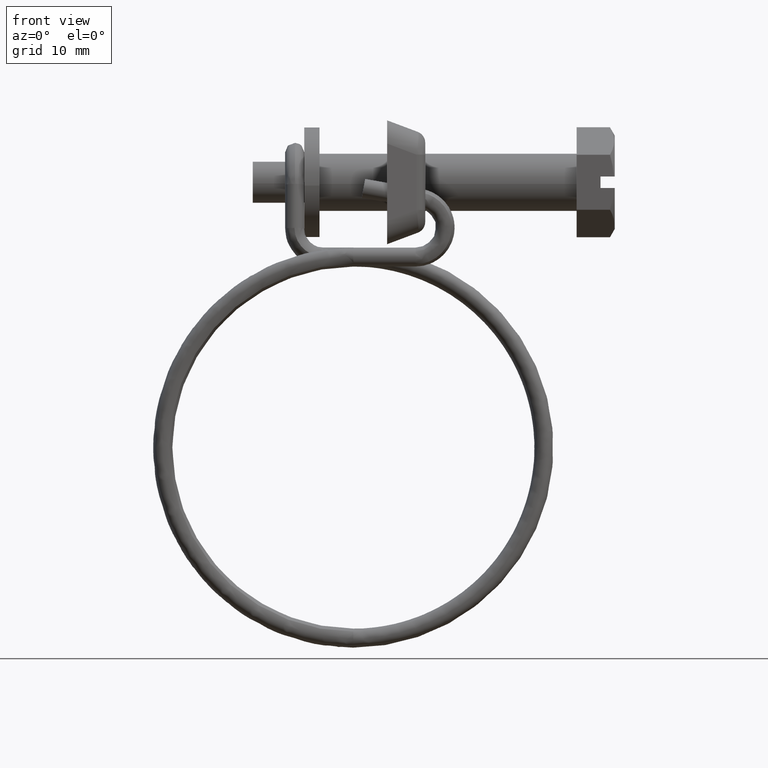
[diagram: clean part render]
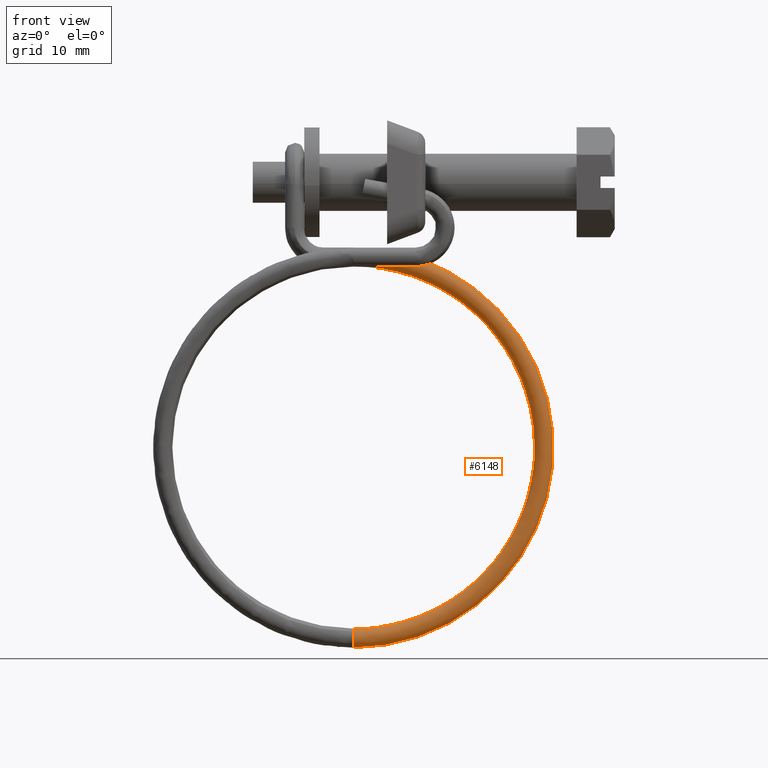
[diagram: same view with one face highlighted and labeled with its STEP entity id]
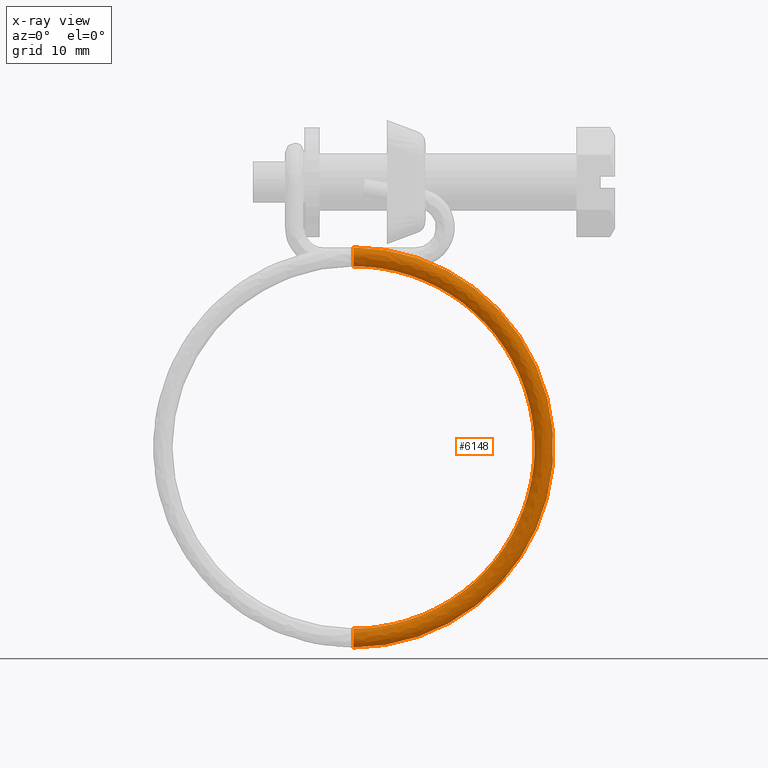
[diagram: x-ray of the same camera — body ghosted, the highlighted face saturated]
A machine part, front view. The second image highlights one B-rep face of the part: STEP entity #6148.
The next image is the same camera in x-ray: the body ghosted, the highlighted face saturated — about 0% of this face is hidden behind the body in this view.
In plain terms, the highlighted face is a freeform B-spline surface patch.
Its self-contained STEP definition (entity closure, byte-faithful):
#4753=CARTESIAN_POINT('',(-23.449996863796830,-5.000908593711698,-8.563250726206654));
#4754=VERTEX_POINT('',#4753);
#4755=CARTESIAN_POINT('',(-23.449996633139222,-5.013226867592238,-7.149116746092552));
#4756=VERTEX_POINT('',#4755);
#4757=CARTESIAN_POINT('',(-23.449996863796830,-5.000908593711698,-8.563250726206654));
#4758=CARTESIAN_POINT('',(-23.449996863217539,-5.004527122057084,-8.559699194597682));
#4759=CARTESIAN_POINT('',(-23.449996862633480,-5.008118266401384,-8.556118435495623));
#4760=CARTESIAN_POINT('',(-23.449996862044681,-5.011681511626909,-8.552508664252308));
#4761=CARTESIAN_POINT('',(-23.449996831902428,-5.194094453122895,-8.367713919870541));
#4762=CARTESIAN_POINT('',(-23.449996790012701,-5.300007484847146,-8.110891414158088));
#4763=CARTESIAN_POINT('',(-23.449996747459640,-5.300015769071364,-7.850004031328743));
#4764=CARTESIAN_POINT('',(-23.449996705175309,-5.300024000979279,-7.590764197282907));
#4765=CARTESIAN_POINT('',(-23.449996663403891,-5.194772174167261,-7.334667816894669));
#4766=CARTESIAN_POINT('',(-23.449996633139222,-5.013226867592238,-7.149116746092552));
#4767=B_SPLINE_CURVE_WITH_KNOTS('',3,(#4757,#4758,#4759,#4760,#4761,#4762,#4763,#4764,#4765,#4766),.UNSPECIFIED.,.F.,.U.,(4,3,3,4),(0.777967315659430,0.793183761033104,1.572158090344366,2.346213062518750),.UNSPECIFIED.);
#4768=EDGE_CURVE('',#4754,#4756,#4767,.T.);
#4839=CARTESIAN_POINT('',(-23.449996584354128,-4.293718917740948,-6.850030608523497));
#4840=VERTEX_POINT('',#4839);
#4841=CARTESIAN_POINT('',(-23.449996633139222,-5.013226867592238,-7.149116746092552));
#4842=CARTESIAN_POINT('',(-23.449996630752000,-4.998905181228775,-7.134480816296122));
#4843=CARTESIAN_POINT('',(-23.449996628436381,-4.984108756247284,-7.120283855972380));
#4844=CARTESIAN_POINT('',(-23.449996626197759,-4.968851812298862,-7.106558947872640));
#4845=CARTESIAN_POINT('',(-23.449996599252032,-4.785207916782578,-6.941355772350729));
#4846=CARTESIAN_POINT('',(-23.449996584100209,-4.540166403185014,-6.848474872630498));
#4847=CARTESIAN_POINT('',(-23.449996584354128,-4.293718917740948,-6.850030608523497));
#4848=B_SPLINE_CURVE_WITH_KNOTS('',3,(#4841,#4842,#4843,#4844,#4845,#4846,#4847),.UNSPECIFIED.,.F.,.U.,(4,3,4),(2.346213062518750,2.407272773988328,3.142232757539485),.UNSPECIFIED.);
#4849=EDGE_CURVE('',#4756,#4840,#4848,.T.);
#4851=CARTESIAN_POINT('',(-23.449996758515940,-3.302436340479343,-7.919734456426307));
#4852=VERTEX_POINT('',#4851);
#4868=CARTESIAN_POINT('',(-23.449996910568728,-4.300002000000000,-8.850001000000578));
#4869=VERTEX_POINT('',#4868);
#4870=CARTESIAN_POINT('',(-23.449996758515940,-3.302436340479343,-7.919734456426308));
#4871=CARTESIAN_POINT('',(-23.449996910568611,-3.367465536661122,-8.850001000000580));
#4872=CARTESIAN_POINT('',(-23.449996910568728,-4.300002000000000,-8.850001000000578));
#4880=(BOUNDED_CURVE()B_SPLINE_CURVE(2,(#4870,#4871,#4872),.UNSPECIFIED.,.F.,.U.)B_SPLINE_CURVE_WITH_KNOTS((3,3),(0.762166384098129,1.0),.UNSPECIFIED.)CURVE()GEOMETRIC_REPRESENTATION_ITEM()RATIONAL_B_SPLINE_CURVE((0.972879726991674,0.721360586785834,1.0))REPRESENTATION_ITEM(''));
#4881=EDGE_CURVE('',#4852,#4869,#4880,.T.);
#4883=CARTESIAN_POINT('',(-23.449996910568728,-4.300002000000000,-8.850001000000578));
#4884=CARTESIAN_POINT('',(-23.449996910569538,-4.559324968388849,-8.850001539832457));
#4885=CARTESIAN_POINT('',(-23.449996893413800,-4.815907585326803,-8.744824974268825));
#4886=CARTESIAN_POINT('',(-23.449996863796830,-5.000908593711698,-8.563250726206654));
#4887=B_SPLINE_CURVE_WITH_KNOTS('',3,(#4883,#4884,#4885,#4886),.UNSPECIFIED.,.F.,.U.,(4,4),(0.0,0.777967315659431),.UNSPECIFIED.);
#4888=EDGE_CURVE('',#4869,#4754,#4887,.T.);
#6033=CARTESIAN_POINT('',(-26.257916351738508,-3.302436326159566,-8.118525170123903));
#6034=CARTESIAN_POINT('',(-3.229009225186917,-3.302436326159564,-4.841363064215777));
#6035=CARTESIAN_POINT('',(-3.521306861655130,-3.302436326159568,-28.100445526846464));
#6036=CARTESIAN_POINT('',(-3.806684889802285,-3.302436326159573,-50.808912040291702));
#6037=CARTESIAN_POINT('',(-26.285869280133902,-3.302436326159572,-47.577478742715385));
#6038=CARTESIAN_POINT('',(-26.125193068076609,-3.368289162160298,-9.051183389096478));
#6039=CARTESIAN_POINT('',(-4.184805608817919,-3.368289162160299,-5.928924656830215));
#6040=CARTESIAN_POINT('',(-4.463287056604212,-3.368289162160303,-28.088607631476940));
#6041=CARTESIAN_POINT('',(-4.735175968896044,-3.368289162160307,-49.723700915436737));
#6042=CARTESIAN_POINT('',(-26.151824730458397,-3.368289162160306,-46.645009503466490));
#6043=CARTESIAN_POINT('',(-26.126864944043966,-4.312568039883350,-9.039434969233525));
#6044=CARTESIAN_POINT('',(-4.172765724335091,-4.312568039883349,-5.915224964963530));
#6045=CARTESIAN_POINT('',(-4.451421210565737,-4.312568039883352,-28.088756749945279));
#6046=CARTESIAN_POINT('',(-4.723480041262215,-4.312568039883355,-49.737370999155914));
#6047=CARTESIAN_POINT('',(-26.153513250023117,-4.312568039883356,-46.656755542807723));
#6048=CARTESIAN_POINT('',(-26.128635336247470,-5.312489084087166,-9.026994267091132));
#6049=CARTESIAN_POINT('',(-4.160016382855392,-5.312489084087165,-5.900718011011921));
#6050=CARTESIAN_POINT('',(-4.438856162844065,-5.312489084087169,-28.088914655303636));
#6051=CARTESIAN_POINT('',(-4.711094924483209,-5.312489084087171,-49.751846600283223));
#6052=CARTESIAN_POINT('',(-26.155301266557352,-5.312489084087173,-46.669193724154859));
#6053=CARTESIAN_POINT('',(-26.269511255566975,-5.299923044203812,-8.037046758382948));
#6054=CARTESIAN_POINT('',(-3.145509428903779,-5.299923044203810,-4.746352062935693));
#6055=CARTESIAN_POINT('',(-3.439014068202415,-5.299923044203815,-28.101479703025301));
#6056=CARTESIAN_POINT('',(-3.725570525610497,-5.299923044203821,-50.903717701205927));
#6057=CARTESIAN_POINT('',(-26.297579611730097,-5.299923044203819,-47.658940644906075));
#6058=CARTESIAN_POINT('',(-26.410387174886491,-5.287357004320461,-7.047099249674772));
#6059=CARTESIAN_POINT('',(-2.131002474952171,-5.287357004320458,-3.591986114859461));
#6060=CARTESIAN_POINT('',(-2.439171973560764,-5.287357004320464,-28.114044750746963));
#6061=CARTESIAN_POINT('',(-2.740046126737783,-5.287357004320468,-52.055588802128682));
#6062=CARTESIAN_POINT('',(-26.439857956902831,-5.287357004320468,-48.648687565657298));
#6063=CARTESIAN_POINT('',(-26.408616782682991,-4.287435960116644,-7.059539951817164));
#6064=CARTESIAN_POINT('',(-2.143751816431874,-4.287435960116644,-3.606493068811071));
#6065=CARTESIAN_POINT('',(-2.451737021282437,-4.287435960116648,-28.113886845388620));
#6066=CARTESIAN_POINT('',(-2.752431243516795,-4.287435960116652,-52.041113201001401));
#6067=CARTESIAN_POINT('',(-26.438069940368589,-4.287435960116651,-48.636249384310226));
#6075=(BOUNDED_SURFACE()B_SPLINE_SURFACE(2,2,((#6033,#6038,#6043,#6048,#6053,#6058,#6063),(#6034,#6039,#6044,#6049,#6054,#6059,#6064),(#6035,#6040,#6045,#6050,#6055,#6060,#6065),(#6036,#6041,#6046,#6051,#6056,#6061,#6066),(#6037,#6042,#6047,#6052,#6057,#6062,#6067)),.UNSPECIFIED.,.F.,.F.,.U.)B_SPLINE_SURFACE_WITH_KNOTS((3,2,3),(3,2,2,3),(0.0,38.644006734939083,76.689017334010003),(0.0,1.590580079512692,3.247434329005080,4.904288578497468),.UNSPECIFIED.)GEOMETRIC_REPRESENTATION_ITEM()RATIONAL_B_SPLINE_SURFACE(((0.973551586078015,0.715914723053852,0.995954791558377,0.704246386866163,0.995954791558377,0.704246386866163,0.995954791558377),(0.634723642159294,0.466752873694963,0.649329795938801,0.459145501934803,0.649329795938801,0.459145501934803,0.649329795938801),(0.977505800795127,0.718822509939086,1.0,0.707106781186548,1.0,0.707106781186548,1.0),(0.640036890080912,0.470660044582174,0.654765311428628,0.462988991796905,0.654765311428628,0.462988991796905,0.654765311428628),(0.963211438261938,0.708310951290812,0.985376697998558,0.696766545177989,0.985376697998558,0.696766545177989,0.985376697998558)))REPRESENTATION_ITEM('')SURFACE());
#6076=CARTESIAN_POINT('',(-23.449999999999719,-3.302485887035294,-47.780271342045083));
#6077=VERTEX_POINT('',#6076);
#6078=CARTESIAN_POINT('',(-23.450000000000362,-4.300002000000012,-46.850000999999601));
#6079=VERTEX_POINT('',#6078);
#6080=CARTESIAN_POINT('',(-23.449999999999719,-3.302485887035294,-47.780271342045083));
#6081=CARTESIAN_POINT('',(-23.449999999999800,-3.319730377707945,-47.542534340298552));
#6082=CARTESIAN_POINT('',(-23.449999999999900,-3.424196145425697,-47.311556064540007));
#6083=CARTESIAN_POINT('',(-23.450000000000141,-3.777998799462708,-46.957772896959831));
#6084=CARTESIAN_POINT('',(-23.450000000000269,-4.038195655369277,-46.850000495565673));
#6085=CARTESIAN_POINT('',(-23.450000000000362,-4.300002000000012,-46.850000999999601));
#6086=B_SPLINE_CURVE_WITH_KNOTS('',3,(#6080,#6081,#6082,#6083,#6084,#6085),.UNSPECIFIED.,.F.,.U.,(4,2,4),(0.761111541812433,0.875000000000000,1.0),.UNSPECIFIED.);
#6087=EDGE_CURVE('',#6077,#6079,#6086,.T.);
#6088=ORIENTED_EDGE('',*,*,#6087,.T.);
#6089=CARTESIAN_POINT('',(-23.450000000000362,-5.028950006542496,-47.165464279956957));
#6090=VERTEX_POINT('',#6089);
#6091=CARTESIAN_POINT('',(-23.450000000000319,-4.300002000000006,-46.850000999999502));
#6092=CARTESIAN_POINT('',(-23.450000000000319,-4.561801387799156,-46.850000999999487));
#6093=CARTESIAN_POINT('',(-23.450000000000319,-4.821988658763287,-46.957774096389691));
#6094=CARTESIAN_POINT('',(-23.450000000000319,-5.014513602405764,-47.150299040032174));
#6095=CARTESIAN_POINT('',(-23.450000000000319,-5.021794667837740,-47.157823969218548));
#6096=CARTESIAN_POINT('',(-23.450000000000362,-5.028950006542496,-47.165464279956957));
#6097=B_SPLINE_CURVE_WITH_KNOTS('',3,(#6091,#6092,#6093,#6094,#6095,#6096),.UNSPECIFIED.,.F.,.U.,(4,2,4),(0.0,0.125000000000000,0.130000011021412),.UNSPECIFIED.);
#6098=EDGE_CURVE('',#6079,#6090,#6097,.T.);
#6099=ORIENTED_EDGE('',*,*,#6098,.T.);
#6100=CARTESIAN_POINT('',(-23.449976354392948,-4.287436116752390,-48.849921119942223));
#6101=VERTEX_POINT('',#6100);
#6102=CARTESIAN_POINT('',(-23.450000000000362,-5.028950006542496,-47.165464279956957));
#6103=CARTESIAN_POINT('',(-23.449999933806190,-5.301876262191295,-47.456492815814663));
#6104=CARTESIAN_POINT('',(-23.449999930636789,-5.375693092721826,-47.880754328182860));
#6105=CARTESIAN_POINT('',(-23.450000000000340,-5.217303322898546,-48.246965717391291));
#6106=CARTESIAN_POINT('',(-23.449992024676298,-5.057340752103372,-48.616813563856986));
#6107=CARTESIAN_POINT('',(-23.449984158487350,-4.690309737041777,-48.855101082411977));
#6108=CARTESIAN_POINT('',(-23.449976354392948,-4.287436116752390,-48.849921119942223));
#6109=B_SPLINE_CURVE_WITH_KNOTS('',3,(#6102,#6103,#6104,#6105,#6106,#6107,#6108),.UNSPECIFIED.,.F.,.U.,(4,3,4),(0.0,1.196944922439449,2.405775436823343),.UNSPECIFIED.);
#6110=EDGE_CURVE('',#6090,#6101,#6109,.T.);
#6111=ORIENTED_EDGE('',*,*,#6110,.T.);
#6112=CARTESIAN_POINT('',(-23.449996584354132,-4.293718917740949,-6.850030608523497));
#6113=CARTESIAN_POINT('',(-2.184514120494809,-4.293718915691291,-6.850034067370706));
#6114=CARTESIAN_POINT('',(-2.451737021279000,-4.290538040769777,-28.113862013882589));
#6115=CARTESIAN_POINT('',(-2.712327148294453,-4.287436118751173,-48.849897769633017));
#6116=CARTESIAN_POINT('',(-23.449976354392945,-4.287436116752390,-48.849921119942223));
#6124=(BOUNDED_CURVE()B_SPLINE_CURVE(2,(#6112,#6113,#6114,#6115,#6116),.UNSPECIFIED.,.F.,.U.)B_SPLINE_CURVE_WITH_KNOTS((3,2,3),(-3.809258943381910,-2.0,-0.221564403942970),.UNSPECIFIED.)CURVE()GEOMETRIC_REPRESENTATION_ITEM()RATIONAL_B_SPLINE_CURVE((0.939140837883531,0.680933076519943,1.0,0.686368843820296,0.930510499823099))REPRESENTATION_ITEM(''));
#6125=EDGE_CURVE('',#4840,#6101,#6124,.T.);
#6126=ORIENTED_EDGE('',*,*,#6125,.F.);
#6127=ORIENTED_EDGE('',*,*,#4849,.F.);
#6128=ORIENTED_EDGE('',*,*,#4768,.F.);
#6129=ORIENTED_EDGE('',*,*,#4888,.F.);
#6130=ORIENTED_EDGE('',*,*,#4881,.F.);
#6131=CARTESIAN_POINT('',(-23.449996758515933,-3.302436340479344,-7.919734456426306));
#6132=CARTESIAN_POINT('',(-3.267695256837032,-3.302436340481385,-7.919737739701600));
#6133=CARTESIAN_POINT('',(-3.521306862045095,-3.302461425057302,-28.100447447373696));
#6134=CARTESIAN_POINT('',(-3.768623819696093,-3.302485887033305,-47.780271342044671));
#6135=CARTESIAN_POINT('',(-23.449999999999722,-3.302485887035294,-47.780271342045083));
#6143=(BOUNDED_CURVE()B_SPLINE_CURVE(2,(#6131,#6132,#6133,#6134,#6135),.UNSPECIFIED.,.F.,.U.)B_SPLINE_CURVE_WITH_KNOTS((3,2,3),(-3.809258943343868,-2.0,-0.221563029385478),.UNSPECIFIED.)CURVE()GEOMETRIC_REPRESENTATION_ITEM()RATIONAL_B_SPLINE_CURVE((0.918015616784133,0.665616032258074,0.977505800795127,0.670929289365785,0.909579780184410))REPRESENTATION_ITEM(''));
#6144=EDGE_CURVE('',#4852,#6077,#6143,.T.);
#6145=ORIENTED_EDGE('',*,*,#6144,.T.);
#6146=EDGE_LOOP('',(#6088,#6099,#6111,#6126,#6127,#6128,#6129,#6130,#6145));
#6147=FACE_OUTER_BOUND('',#6146,.T.);
#6148=ADVANCED_FACE('',(#6147),#6075,.T.);